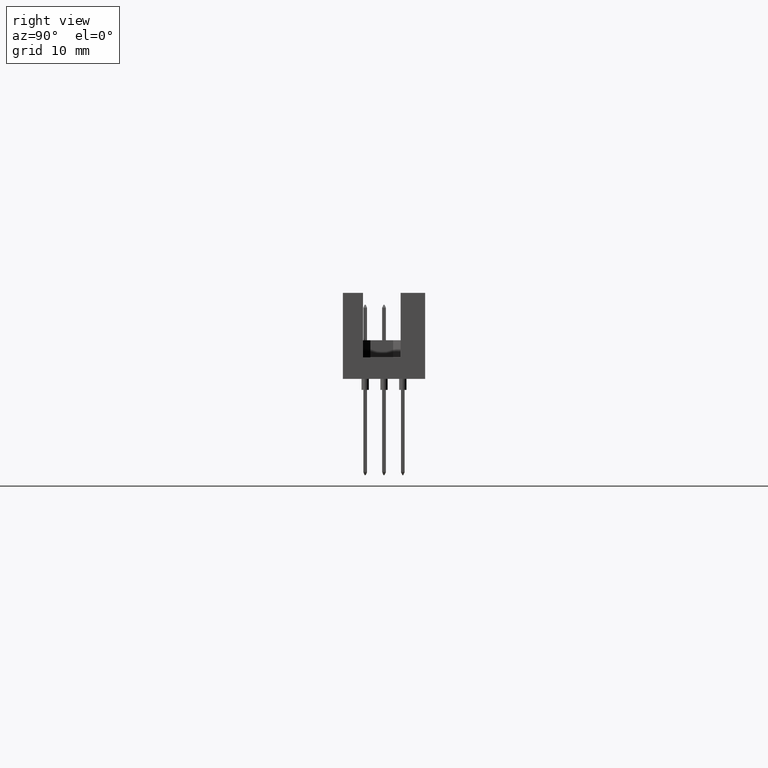
[diagram: clean part render]
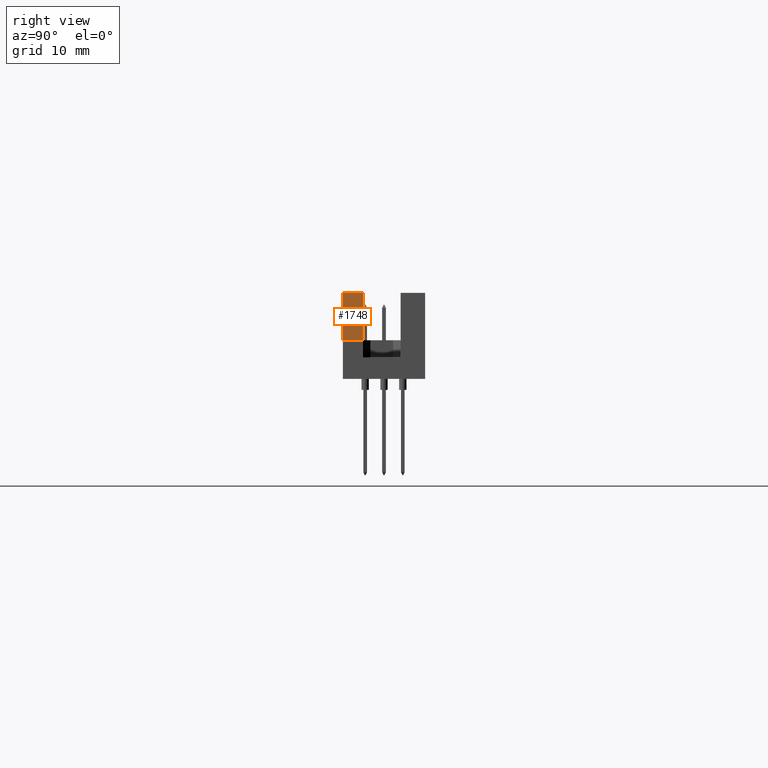
[diagram: same view with one face highlighted and labeled with its STEP entity id]
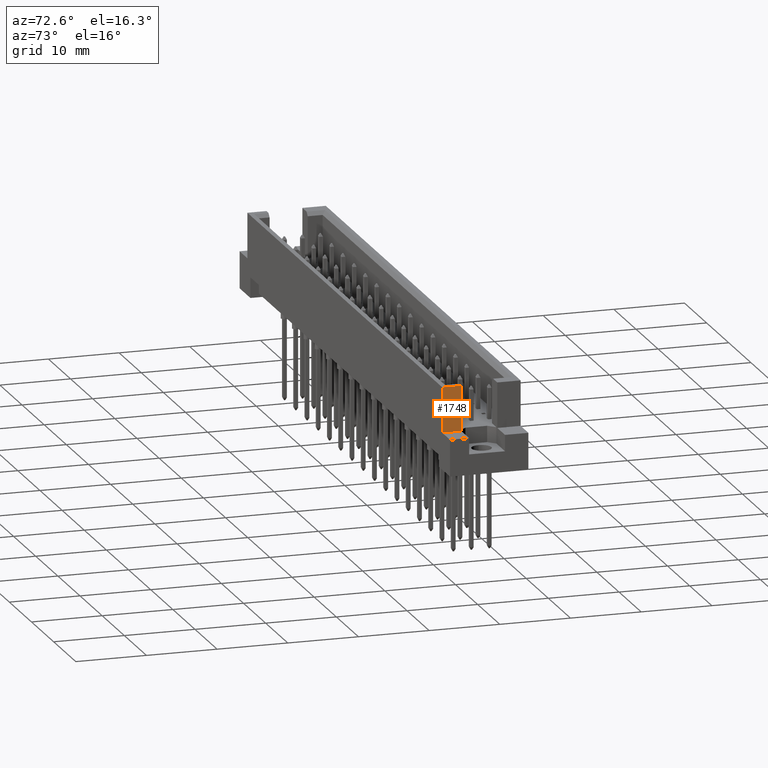
[diagram: same view with one face highlighted and labeled with its STEP entity id]
A machine part, right view. The second image highlights one B-rep face of the part: STEP entity #1748.
A second angle (auxiliary view) of the same face is appended — the face is thin or edge-on in the first view.
In plain terms, the highlighted planar face has unit normal (-1, 0, 0).
Its self-contained STEP definition (entity closure, byte-faithful):
#45 = ORIENTED_EDGE ( 'NONE', *, *, #2202, .F. ) ;
#187 = EDGE_LOOP ( 'NONE', ( #10654, #16251, #13388, #45 ) ) ;
#899 = VECTOR ( 'NONE', #3866, 1000.000000000000000 ) ;
#1748 = ADVANCED_FACE ( 'NONE', ( #4738 ), #7169, .F. ) ;
#1879 = CARTESIAN_POINT ( 'NONE',  ( 44.00000000000000000, 0.0000000000000000000, 5.199999999999992184 ) ) ;
#2202 = EDGE_CURVE ( 'NONE', #15938, #7747, #5946, .T. ) ;
#2534 = CARTESIAN_POINT ( 'NONE',  ( 44.00000000000000000, 2.709999999999989750, 5.199999999999992184 ) ) ;
#3397 = VECTOR ( 'NONE', #8787, 1000.000000000000000 ) ;
#3866 = DIRECTION ( 'NONE',  ( -0.0000000000000000000, -1.000000000000000000, -0.0000000000000000000 ) ) ;
#4040 = CARTESIAN_POINT ( 'NONE',  ( 44.00000000000000000, 0.0000000000000000000, 11.59999999999999254 ) ) ;
#4611 = VECTOR ( 'NONE', #14403, 1000.000000000000000 ) ;
#4738 = FACE_OUTER_BOUND ( 'NONE', #187, .T. ) ;
#4989 = CARTESIAN_POINT ( 'NONE',  ( 44.00000000000000000, 0.0000000000000000000, 5.199999999999992184 ) ) ;
#5435 = DIRECTION ( 'NONE',  ( 0.0000000000000000000, 0.0000000000000000000, 1.000000000000000000 ) ) ;
#5508 = CARTESIAN_POINT ( 'NONE',  ( 44.00000000000000000, 2.709999999999991971, 11.59999999999999254 ) ) ;
#5787 = CARTESIAN_POINT ( 'NONE',  ( 44.00000000000000000, 2.709999999999991971, 5.199999999999992184 ) ) ;
#5946 = LINE ( 'NONE', #6112, #3397 ) ;
#6112 = CARTESIAN_POINT ( 'NONE',  ( 44.00000000000000000, 0.0000000000000000000, 5.199999999999992184 ) ) ;
#6821 = EDGE_CURVE ( 'NONE', #13340, #15979, #10435, .T. ) ;
#6988 = LINE ( 'NONE', #5787, #14204 ) ;
#7169 = PLANE ( 'NONE',  #11690 ) ;
#7747 = VERTEX_POINT ( 'NONE', #11840 ) ;
#8465 = DIRECTION ( 'NONE',  ( 0.0000000000000000000, 0.0000000000000000000, 1.000000000000000000 ) ) ;
#8632 = DIRECTION ( 'NONE',  ( -1.000000000000000000, 0.0000000000000000000, 0.0000000000000000000 ) ) ;
#8787 = DIRECTION ( 'NONE',  ( -0.0000000000000000000, -1.000000000000000000, -0.0000000000000000000 ) ) ;
#10435 = LINE ( 'NONE', #4040, #899 ) ;
#10507 = EDGE_CURVE ( 'NONE', #15938, #13340, #6988, .T. ) ;
#10654 = ORIENTED_EDGE ( 'NONE', *, *, #10507, .T. ) ;
#11690 = AXIS2_PLACEMENT_3D ( 'NONE', #1879, #8632, #8465 ) ;
#11805 = LINE ( 'NONE', #4989, #4611 ) ;
#11840 = CARTESIAN_POINT ( 'NONE',  ( 44.00000000000000000, 0.0000000000000000000, 5.199999999999992184 ) ) ;
#13340 = VERTEX_POINT ( 'NONE', #5508 ) ;
#13388 = ORIENTED_EDGE ( 'NONE', *, *, #15859, .F. ) ;
#14204 = VECTOR ( 'NONE', #5435, 1000.000000000000000 ) ;
#14323 = CARTESIAN_POINT ( 'NONE',  ( 44.00000000000000000, 0.0000000000000000000, 11.59999999999999254 ) ) ;
#14403 = DIRECTION ( 'NONE',  ( -0.0000000000000000000, -0.0000000000000000000, 1.000000000000000000 ) ) ;
#15859 = EDGE_CURVE ( 'NONE', #7747, #15979, #11805, .T. ) ;
#15938 = VERTEX_POINT ( 'NONE', #2534 ) ;
#15979 = VERTEX_POINT ( 'NONE', #14323 ) ;
#16251 = ORIENTED_EDGE ( 'NONE', *, *, #6821, .T. ) ;